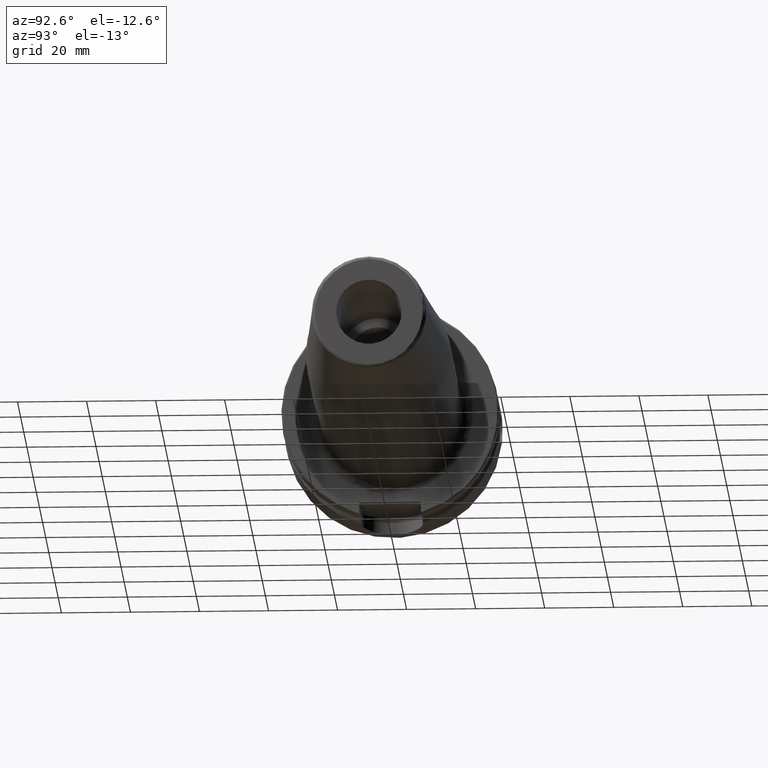
[diagram: clean part render]
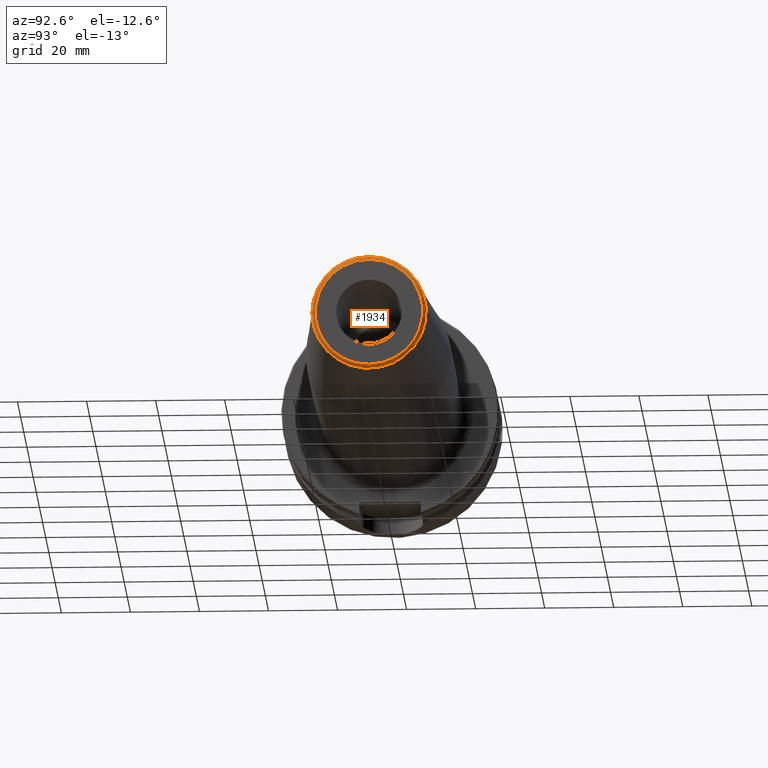
[diagram: same view with one face highlighted and labeled with its STEP entity id]
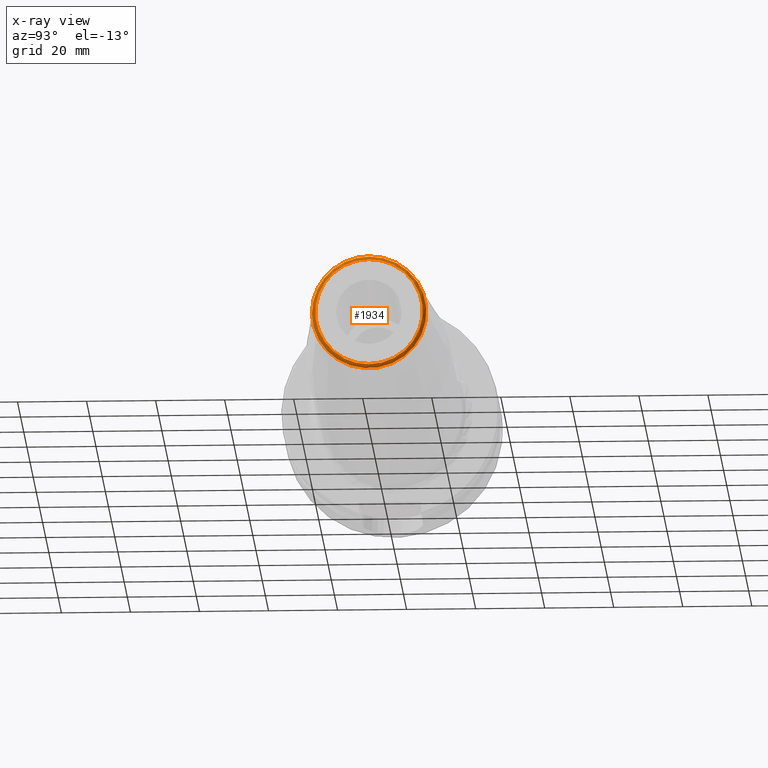
[diagram: x-ray of the same camera — body ghosted, the highlighted face saturated]
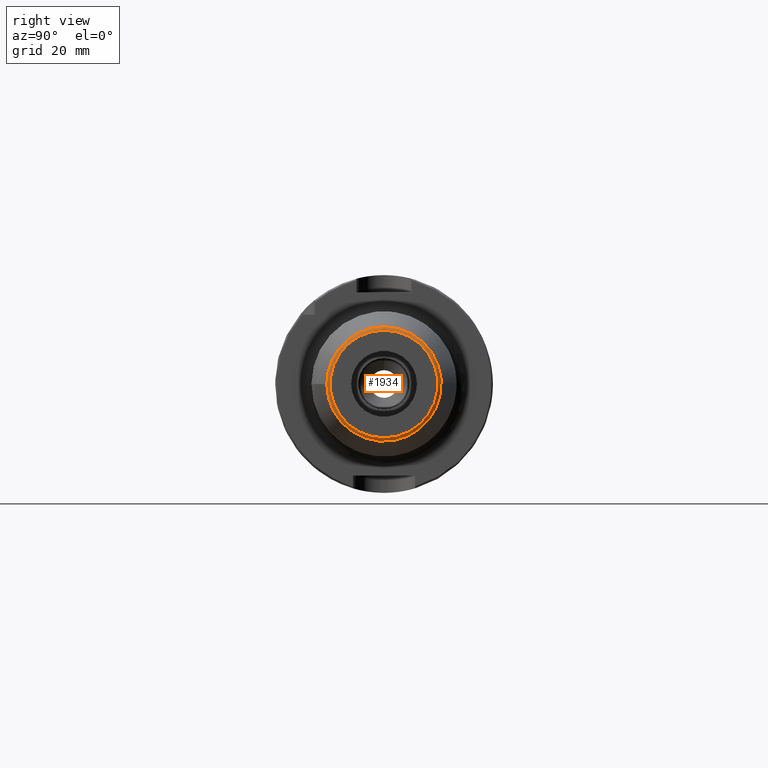
[diagram: same view with one face highlighted and labeled with its STEP entity id]
A machine part, auxiliary view. The second image highlights one B-rep face of the part: STEP entity #1934.
The next image is the same camera in x-ray: the body ghosted, the highlighted face saturated — about 0% of this face is hidden behind the body in this view.
A second angle (right view) of the same face is appended — the face is thin or edge-on in the first view.
In plain terms, the highlighted toroidal blend (fillet) surface has major radius 15.5756 mm and minor (blend) radius 1 mm.
Its self-contained STEP definition (entity closure, byte-faithful):
#150=TOROIDAL_SURFACE('',#2077,15.5756095083418,1.);
#209=FACE_OUTER_BOUND('',#325,.T.);
#325=EDGE_LOOP('',(#1306,#1307,#1308,#1309,#1310));
#666=CIRCLE('',#2078,15.5756095083418);
#667=CIRCLE('',#2079,1.);
#668=CIRCLE('',#2080,16.5725268420749);
#669=CIRCLE('',#2081,16.5725268420749);
#790=VERTEX_POINT('',#2931);
#791=VERTEX_POINT('',#2933);
#792=VERTEX_POINT('',#2935);
#993=EDGE_CURVE('',#790,#790,#666,.T.);
#994=EDGE_CURVE('',#790,#791,#667,.T.);
#995=EDGE_CURVE('',#791,#792,#668,.T.);
#996=EDGE_CURVE('',#792,#791,#669,.T.);
#1306=ORIENTED_EDGE('',*,*,#993,.T.);
#1307=ORIENTED_EDGE('',*,*,#994,.T.);
#1308=ORIENTED_EDGE('',*,*,#995,.T.);
#1309=ORIENTED_EDGE('',*,*,#996,.T.);
#1310=ORIENTED_EDGE('',*,*,#994,.F.);
#1934=ADVANCED_FACE('',(#209),#150,.T.);
#2077=AXIS2_PLACEMENT_3D('',#2930,#2333,#2334);
#2078=AXIS2_PLACEMENT_3D('',#2932,#2335,#2336);
#2079=AXIS2_PLACEMENT_3D('',#2934,#2337,#2338);
#2080=AXIS2_PLACEMENT_3D('',#2936,#2339,#2340);
#2081=AXIS2_PLACEMENT_3D('',#2937,#2341,#2342);
#2333=DIRECTION('center_axis',(1.,0.,0.));
#2334=DIRECTION('ref_axis',(0.,0.,-1.));
#2335=DIRECTION('center_axis',(-1.,0.,0.));
#2336=DIRECTION('ref_axis',(0.,-1.,1.83697019872103E-16));
#2337=DIRECTION('center_axis',(0.,-1.,-1.22464679914735E-16));
#2338=DIRECTION('ref_axis',(0.,-1.22464679914735E-16,1.));
#2339=DIRECTION('center_axis',(1.,0.,0.));
#2340=DIRECTION('ref_axis',(0.,-1.,3.06161699786838E-17));
#2341=DIRECTION('center_axis',(1.,0.,0.));
#2342=DIRECTION('ref_axis',(0.,-1.,3.06161699786838E-17));
#2930=CARTESIAN_POINT('Origin',(159.,0.,0.));
#2931=CARTESIAN_POINT('',(160.,-1.90746203291599E-15,15.5756095083418));
#2932=CARTESIAN_POINT('Origin',(160.,0.,0.));
#2933=CARTESIAN_POINT('',(159.078459095728,-2.02954919509306E-15,16.5725268420749));
#2934=CARTESIAN_POINT('Origin',(159.,-1.90746203291599E-15,15.5756095083418));
#2935=CARTESIAN_POINT('',(159.078459095728,-16.5725268420749,-2.02954919509306E-15));
#2936=CARTESIAN_POINT('Origin',(159.078459095728,0.,-2.53693649386633E-15));
#2937=CARTESIAN_POINT('Origin',(159.078459095728,0.,-2.53693649386633E-15));